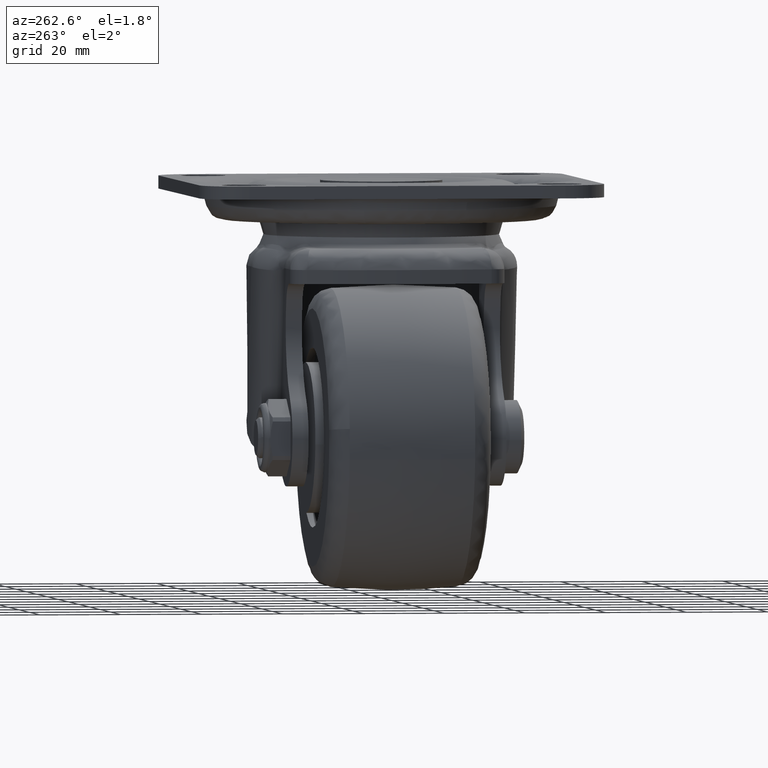
[diagram: clean part render]
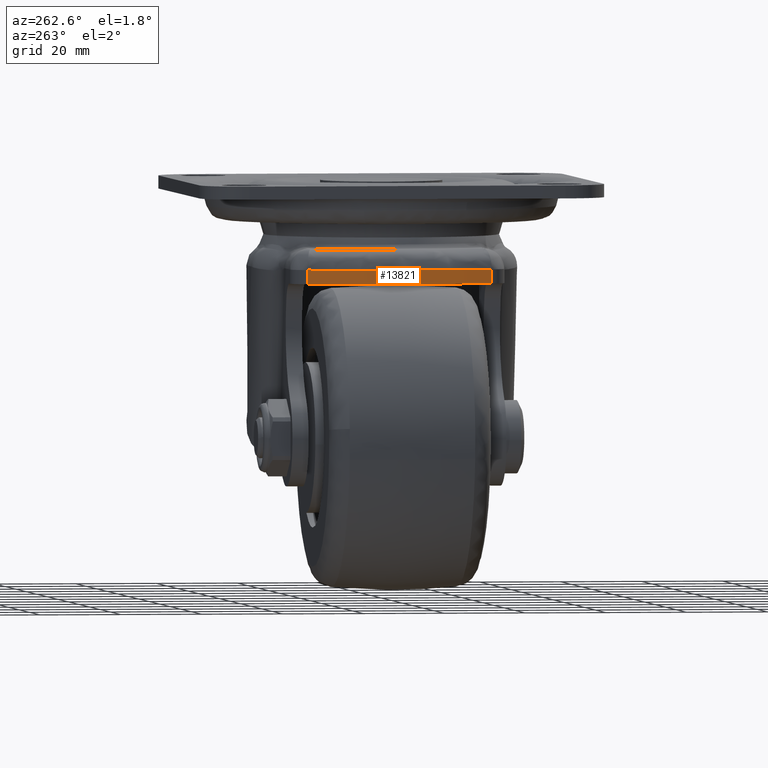
[diagram: same view with one face highlighted and labeled with its STEP entity id]
A machine part, auxiliary view. The second image highlights one B-rep face of the part: STEP entity #13821.
In plain terms, the highlighted face is a freeform B-spline surface patch.
Its self-contained STEP definition (entity closure, byte-faithful):
#11265=CARTESIAN_POINT('',(-28.528382672555651,22.767969037965202,-22.613360024417300));
#11266=VERTEX_POINT('',#11265);
#11282=CARTESIAN_POINT('',(-27.863686879802401,22.767969037965202,-19.193796614409852));
#11283=VERTEX_POINT('',#11282);
#11284=CARTESIAN_POINT('',(-27.863686879802401,22.767969037965202,-19.193796614409852));
#11285=CARTESIAN_POINT('',(-28.528382672555651,22.767969037965202,-22.613360024417300));
#11286=QUASI_UNIFORM_CURVE('',1,(#11284,#11285),.UNSPECIFIED.,.F.,.U.);
#11287=EDGE_CURVE('',#11283,#11266,#11286,.T.);
#12024=CARTESIAN_POINT('',(-27.863686879802248,-22.767969037965251,-19.193796614409901));
#12025=VERTEX_POINT('',#12024);
#12071=CARTESIAN_POINT('',(-28.528382672555502,-22.767969037965251,-22.613360024417350));
#12072=VERTEX_POINT('',#12071);
#12073=CARTESIAN_POINT('',(-28.528382672555502,-22.767969037965251,-22.613360024417350));
#12074=CARTESIAN_POINT('',(-27.863686879802248,-22.767969037965251,-19.193796614409901));
#12075=QUASI_UNIFORM_CURVE('',1,(#12073,#12074),.UNSPECIFIED.,.F.,.U.);
#12076=EDGE_CURVE('',#12072,#12025,#12075,.T.);
#13693=CARTESIAN_POINT('',(-27.863686879802302,-22.767969037965241,-19.193796614409870));
#13694=CARTESIAN_POINT('',(-33.722956420980601,-5.992429E-014,-18.054869989674412));
#13695=CARTESIAN_POINT('',(-27.863686879802440,22.767969037965191,-19.193796614409852));
#13703=(BOUNDED_CURVE()B_SPLINE_CURVE(2,(#13693,#13694,#13695),.UNSPECIFIED.,.F.,.U.)CURVE()GEOMETRIC_REPRESENTATION_ITEM()QUASI_UNIFORM_CURVE()RATIONAL_B_SPLINE_CURVE((1.0,0.967310798425444,1.0))REPRESENTATION_ITEM(''));
#13704=EDGE_CURVE('',#12025,#11283,#13703,.T.);
#13760=CARTESIAN_POINT('',(-28.528382672555590,-22.767969037965280,-22.613360024417311));
#13761=CARTESIAN_POINT('',(-34.387652213733915,-7.727152E-014,-21.474433399681843));
#13762=CARTESIAN_POINT('',(-28.528382672555750,22.767969037965191,-22.613360024417279));
#13770=(BOUNDED_CURVE()B_SPLINE_CURVE(2,(#13760,#13761,#13762),.UNSPECIFIED.,.F.,.U.)CURVE()GEOMETRIC_REPRESENTATION_ITEM()QUASI_UNIFORM_CURVE()RATIONAL_B_SPLINE_CURVE((1.0,0.967310798425444,1.0))REPRESENTATION_ITEM(''));
#13771=EDGE_CURVE('',#12072,#11266,#13770,.T.);
#13801=CARTESIAN_POINT('',(-27.953724561909432,-24.952756826402656,-22.813781425205370));
#13802=CARTESIAN_POINT('',(-27.255378544648025,-24.952756826402656,-19.221102617566260));
#13803=CARTESIAN_POINT('',(-35.041878592367858,0.004513303716611,-21.435983853549111));
#13804=CARTESIAN_POINT('',(-34.343532575106451,0.004513303716614,-17.843305045910007));
#13805=CARTESIAN_POINT('',(-27.951358566902371,24.961085948175910,-22.814241328046261));
#13806=CARTESIAN_POINT('',(-27.253012549640960,24.961085948175921,-19.221562520407161));
#13814=(BOUNDED_SURFACE()B_SPLINE_SURFACE(1,2,((#13801,#13803,#13805),(#13802,#13804,#13806)),.UNSPECIFIED.,.F.,.F.,.U.)B_SPLINE_SURFACE_WITH_KNOTS((2,2),(3,3),(0.0,3.659921880953749),(0.085980450773239,51.005763972139363),.UNSPECIFIED.)GEOMETRIC_REPRESENTATION_ITEM()RATIONAL_B_SPLINE_SURFACE(((0.999860227050967,0.958538110385888,0.995874976479515),(0.999860227050967,0.958538110385888,0.995874976479515)))REPRESENTATION_ITEM('')SURFACE());
#13815=ORIENTED_EDGE('',*,*,#13704,.T.);
#13816=ORIENTED_EDGE('',*,*,#11287,.T.);
#13817=ORIENTED_EDGE('',*,*,#13771,.F.);
#13818=ORIENTED_EDGE('',*,*,#12076,.T.);
#13819=EDGE_LOOP('',(#13815,#13816,#13817,#13818));
#13820=FACE_OUTER_BOUND('',#13819,.T.);
#13821=ADVANCED_FACE('',(#13820),#13814,.T.);